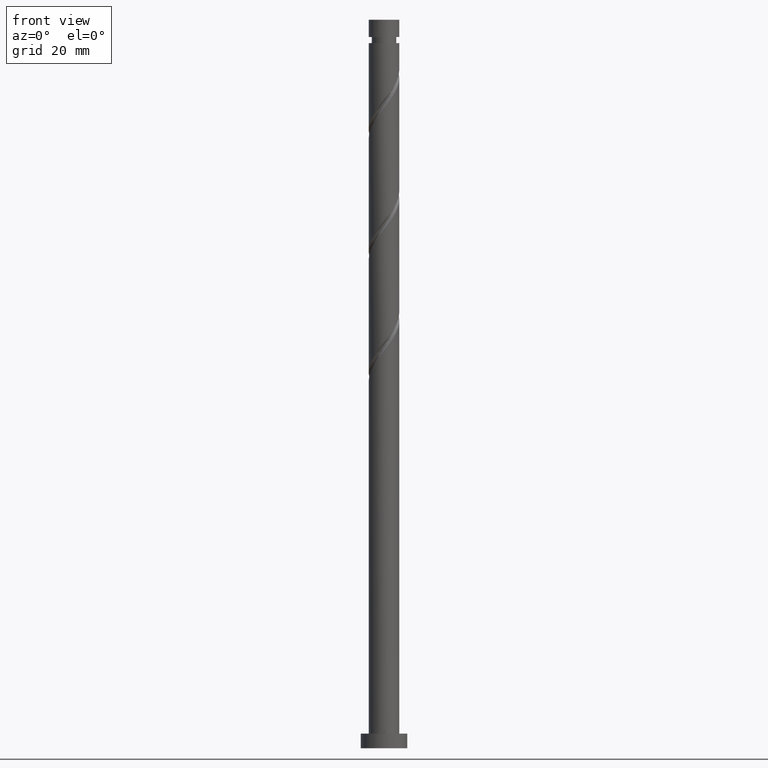
[diagram: clean part render]
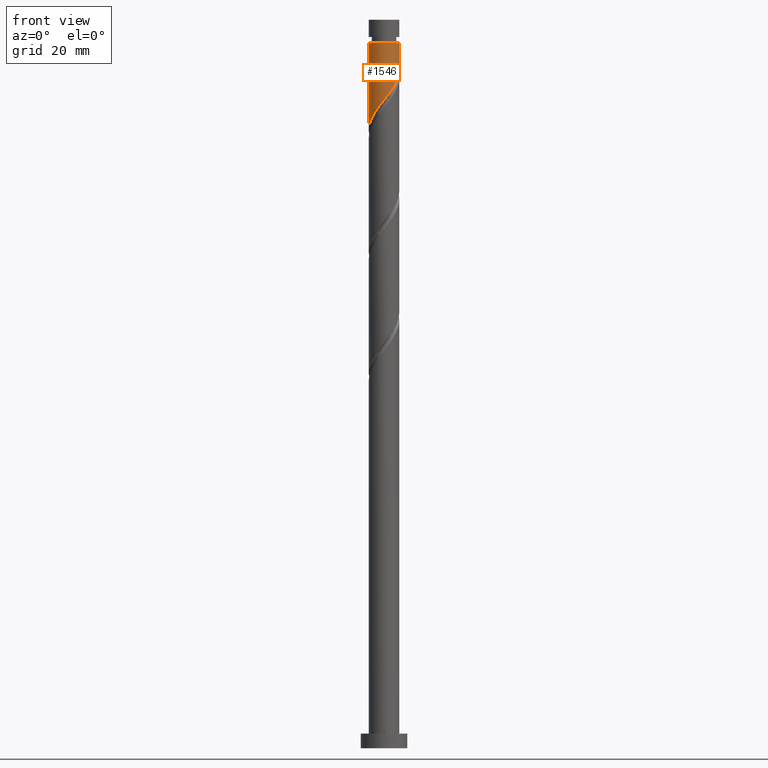
[diagram: same view with one face highlighted and labeled with its STEP entity id]
A machine part, front view. The second image highlights one B-rep face of the part: STEP entity #1546.
In plain terms, the highlighted cylindrical surface (edge-blend (fillet) strip) has radius 5.25 mm, axis along (-0, -0, -1).
Its self-contained STEP definition (entity closure, byte-faithful):
#6 = FACE_OUTER_BOUND ( 'NONE', #1511, .T. ) ;
#13 = VERTEX_POINT ( 'NONE', #183 ) ;
#23 = CARTESIAN_POINT ( 'NONE',  ( 5.250000000000000000, 6.429395695523604153E-16, 250.0000000000000000 ) ) ;
#47 = CARTESIAN_POINT ( 'NONE',  ( 4.981558050541674554, -1.657280721267053947, 230.7659422179621345 ) ) ;
#54 = CARTESIAN_POINT ( 'NONE',  ( 1.465932217448121078, -5.041184655797447789, 224.3556858077056972 ) ) ;
#57 = DIRECTION ( 'NONE',  ( -1.000000000000000000, 0.000000000000000000, 0.000000000000000000 ) ) ;
#79 = CARTESIAN_POINT ( 'NONE',  ( -5.250000000000000000, 0.000000000000000000, 250.0000000000000000 ) ) ;
#169 = CARTESIAN_POINT ( 'NONE',  ( -5.181127346747590678, -0.8475962581230895854, 213.1377370897569961 ) ) ;
#183 = CARTESIAN_POINT ( 'NONE',  ( 5.250000000000000000, -1.974183886393856235E-15, 232.8951461451360387 ) ) ;
#192 = CARTESIAN_POINT ( 'NONE',  ( -5.078210528114517786, -1.476699015892271039, 213.9390191410390116 ) ) ;
#200 = CARTESIAN_POINT ( 'NONE',  ( 0.8538215787515638366, -5.219181052909403817, 223.5544037564235964 ) ) ;
#212 = AXIS2_PLACEMENT_3D ( 'NONE', #1622, #721, #1593 ) ;
#268 = CARTESIAN_POINT ( 'NONE',  ( -5.249999999999999112, -8.973563119972073237E-17, 212.0618128118026675 ) ) ;
#299 = CARTESIAN_POINT ( 'NONE',  ( -2.821862584929311968, -4.472801549718744774, 218.7467114487312472 ) ) ;
#311 =( BOUNDED_CURVE ( )  B_SPLINE_CURVE ( 2, ( #881, #312, #457, #1148, #47, #596, #1564, #868, #1322, #1163, #1591, #329, #54, #200, #765, #1603, #1018, #1294, #1303, #299, #1442, #1431, #625, #1580, #1181, #192, #169, #1459, #608 ),
 .UNSPECIFIED., .F., .T. ) 
 B_SPLINE_CURVE_WITH_KNOTS ( ( 3, 2, 2, 2, 2, 2, 2, 2, 2, 2, 2, 2, 2, 2, 3 ),
 ( 0.3045271625973833274, 0.3076923076923077094, 0.3173076923076922906, 0.3269230769230769273, 0.3365384615384615641, 0.3461538461538461453, 0.3557692307692307820, 0.3653846153846153633, 0.3750000000000000000, 0.3846153846153846367, 0.3942307692307692180, 0.4038461538461538547, 0.4134615384615384359, 0.4230769230769230727, 0.4295271625973831053 ),
 .UNSPECIFIED. ) 
 CURVE ( )  GEOMETRIC_REPRESENTATION_ITEM ( )  RATIONAL_B_SPLINE_CURVE ( ( 0.9061636035682767432, 0.9069090390690653924, 0.9090909090909219392, 0.9024626128164254801, 0.9090909090909219392, 0.9024626128164254801, 0.9090909090909219392, 0.9024626128164254801, 0.9090909090909219392, 0.9024626128164254801, 0.9090909090909219392, 0.9024626128164254801, 0.9090909090909219392, 0.9024626128164254801, 0.9090909090909219392, 0.9024626128164254801, 0.9090909090909219392, 0.9024626128164254801, 0.9090909090909219392, 0.9024626128164254801, 0.9090909090909219392, 0.9024626128164254801, 0.9090909090909219392, 0.9024626128164254801, 0.9090909090909219392, 0.9024626128164254801, 0.9090909090909219392, 0.9046444828382821379, 0.9061636035682766321 ) ) 
 REPRESENTATION_ITEM ( '' )  );
#312 = CARTESIAN_POINT ( 'NONE',  ( 5.250000000000000888, -0.2088089342680400917, 232.6309752295030933 ) ) ;
#329 = CARTESIAN_POINT ( 'NONE',  ( 2.078042856144674655, -4.863188258685489984, 225.1569678589877412 ) ) ;
#457 = CARTESIAN_POINT ( 'NONE',  ( 5.233416263927303191, -0.4169582814397808646, 232.3685063205262225 ) ) ;
#491 = EDGE_CURVE ( 'NONE', #1473, #1344, #1479, .T. ) ;
#573 = CARTESIAN_POINT ( 'NONE',  ( 5.249999999999984013, 6.429395695523594292E-16, 241.9838909359108357 ) ) ;
#585 = DIRECTION ( 'NONE',  ( -0.000000000000000000, -0.000000000000000000, -1.000000000000000000 ) ) ;
#596 = CARTESIAN_POINT ( 'NONE',  ( 4.780327738609410737, -2.262151379300639142, 229.9646601666799768 ) ) ;
#608 = CARTESIAN_POINT ( 'NONE',  ( -5.250000000000000000, -8.973563119972072005E-17, 212.0618128118026391 ) ) ;
#625 = CARTESIAN_POINT ( 'NONE',  ( -4.193762807166892870, -3.158299149419456775, 216.3428652948851720 ) ) ;
#720 = VECTOR ( 'NONE', #585, 1000.000000000000000 ) ;
#721 = DIRECTION ( 'NONE',  ( -0.000000000000000000, -0.000000000000000000, -1.000000000000000000 ) ) ;
#759 = ORIENTED_EDGE ( 'NONE', *, *, #834, .F. ) ;
#765 = CARTESIAN_POINT ( 'NONE',  ( 0.2169004367340699735, -5.245517534099430890, 222.7531217051416093 ) ) ;
#834 = EDGE_CURVE ( 'NONE', #13, #1344, #311, .T. ) ;
#868 = CARTESIAN_POINT ( 'NONE',  ( 4.100051842361240872, -3.340424679788565054, 228.3620960641159456 ) ) ;
#881 = CARTESIAN_POINT ( 'NONE',  ( 5.250000000000000888, -1.974183886393856235E-15, 232.8951461451360387 ) ) ;
#905 = DIRECTION ( 'NONE',  ( -0.000000000000000000, -0.000000000000000000, -1.000000000000000000 ) ) ;
#912 = CIRCLE ( 'NONE', #1457, 5.249999999999984013 ) ;
#956 = ORIENTED_EDGE ( 'NONE', *, *, #1562, .T. ) ;
#984 = EDGE_CURVE ( 'NONE', #1616, #13, #1000, .T. ) ;
#1000 = LINE ( 'NONE', #23, #720 ) ;
#1018 = CARTESIAN_POINT ( 'NONE',  ( -1.044736808961953534, -5.145000000000001350, 221.1505576025774644 ) ) ;
#1032 = CYLINDRICAL_SURFACE ( 'NONE', #212, 5.250000000000000000 ) ;
#1109 = CARTESIAN_POINT ( 'NONE',  ( -5.249999999999984013, 0.000000000000000000, 241.9838909359108357 ) ) ;
#1148 = CARTESIAN_POINT ( 'NONE',  ( 5.182788362473937482, -1.052410063233463866, 231.5672242692441785 ) ) ;
#1158 = ORIENTED_EDGE ( 'NONE', *, *, #491, .T. ) ;
#1163 = CARTESIAN_POINT ( 'NONE',  ( 3.181495836117103515, -4.224564639836851931, 226.7595319615518861 ) ) ;
#1175 = CARTESIAN_POINT ( 'NONE',  ( 0.000000000000000000, 0.000000000000000000, 241.9838909359108357 ) ) ;
#1181 = CARTESIAN_POINT ( 'NONE',  ( -4.827730140806548498, -2.062891584050885019, 214.7403011923210840 ) ) ;
#1294 = CARTESIAN_POINT ( 'NONE',  ( -1.669452912640485343, -5.018145984710542962, 220.3492755512954204 ) ) ;
#1303 = CARTESIAN_POINT ( 'NONE',  ( -2.245657748784898544, -4.745473767214643424, 219.5479935000133764 ) ) ;
#1322 = CARTESIAN_POINT ( 'NONE',  ( 3.640773839239173526, -3.782494659812707383, 227.5608140128338732 ) ) ;
#1344 = VERTEX_POINT ( 'NONE', #268 ) ;
#1431 = CARTESIAN_POINT ( 'NONE',  ( -3.810275860835201200, -3.667514146629415883, 217.1441473461672160 ) ) ;
#1442 = CARTESIAN_POINT ( 'NONE',  ( -3.316069222882257250, -4.070157848174082105, 217.9454293974492884 ) ) ;
#1457 = AXIS2_PLACEMENT_3D ( 'NONE', #1175, #905, #57 ) ;
#1459 = CARTESIAN_POINT ( 'NONE',  ( -5.249999999999997335, -0.4265963023194997428, 212.6015135491510364 ) ) ;
#1473 = VERTEX_POINT ( 'NONE', #1109 ) ;
#1479 = LINE ( 'NONE', #79, #1595 ) ;
#1511 = EDGE_LOOP ( 'NONE', ( #1567, #956, #1158, #759 ) ) ;
#1546 = ADVANCED_FACE ( 'NONE', ( #6 ), #1032, .T. ) ;
#1562 = EDGE_CURVE ( 'NONE', #1616, #1473, #912, .T. ) ;
#1564 = CARTESIAN_POINT ( 'NONE',  ( 4.440189790485325361, -2.801288029544602320, 229.1633781153980181 ) ) ;
#1567 = ORIENTED_EDGE ( 'NONE', *, *, #984, .F. ) ;
#1580 = CARTESIAN_POINT ( 'NONE',  ( -4.577249753498582763, -2.649084152209498999, 215.5415832436030712 ) ) ;
#1591 = CARTESIAN_POINT ( 'NONE',  ( 2.629769346130890195, -4.543876449261172290, 225.9582499102698137 ) ) ;
#1593 = DIRECTION ( 'NONE',  ( -1.000000000000000000, 0.000000000000000000, 0.000000000000000000 ) ) ;
#1595 = VECTOR ( 'NONE', #1638, 1000.000000000000000 ) ;
#1603 = CARTESIAN_POINT ( 'NONE',  ( -0.4200207052834239452, -5.271854015289456186, 221.9518396538595368 ) ) ;
#1616 = VERTEX_POINT ( 'NONE', #573 ) ;
#1622 = CARTESIAN_POINT ( 'NONE',  ( 0.000000000000000000, 0.000000000000000000, 250.0000000000000000 ) ) ;
#1638 = DIRECTION ( 'NONE',  ( -0.000000000000000000, -0.000000000000000000, -1.000000000000000000 ) ) ;